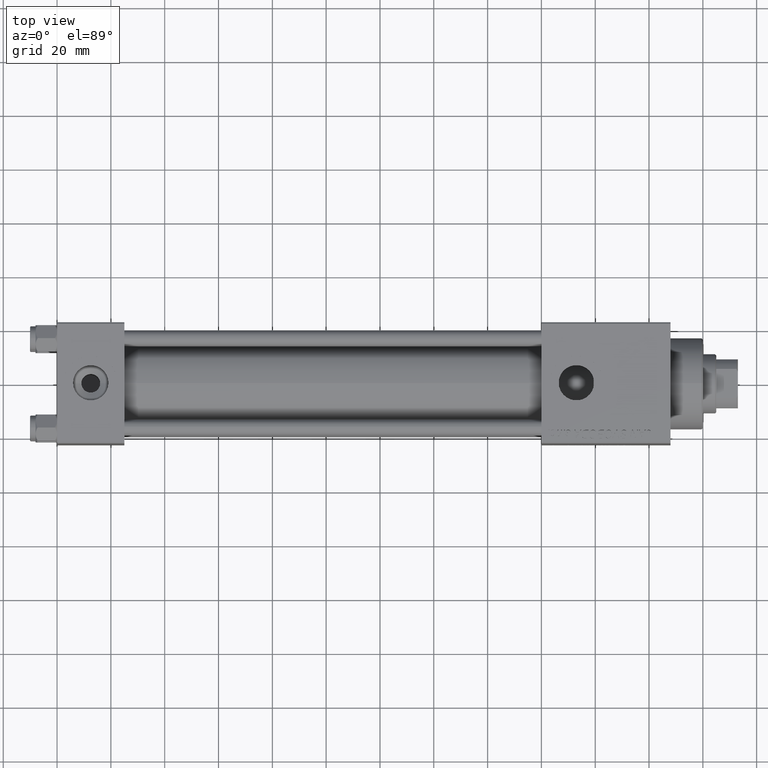
[diagram: clean part render]
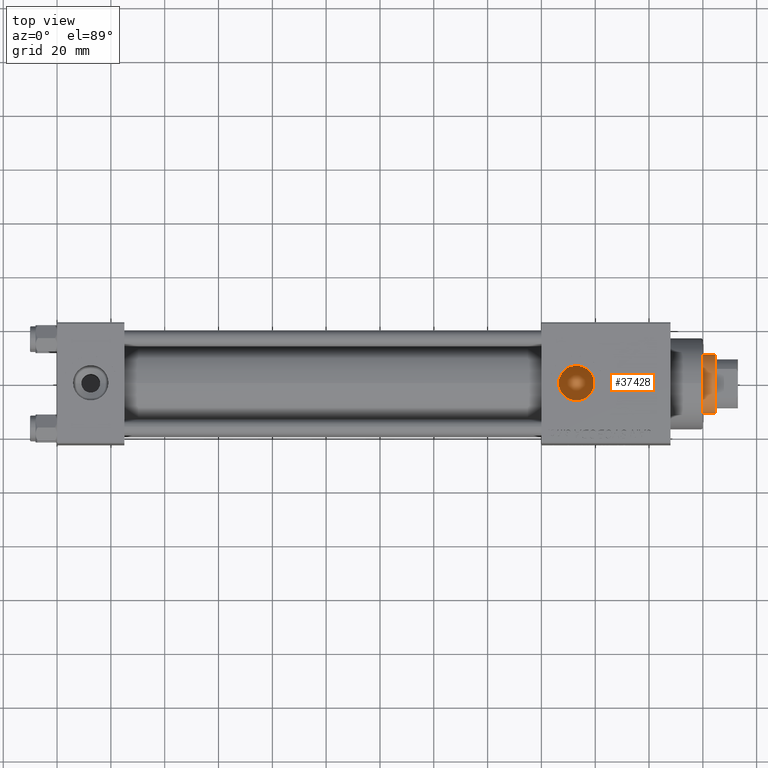
[diagram: same view with one face highlighted and labeled with its STEP entity id]
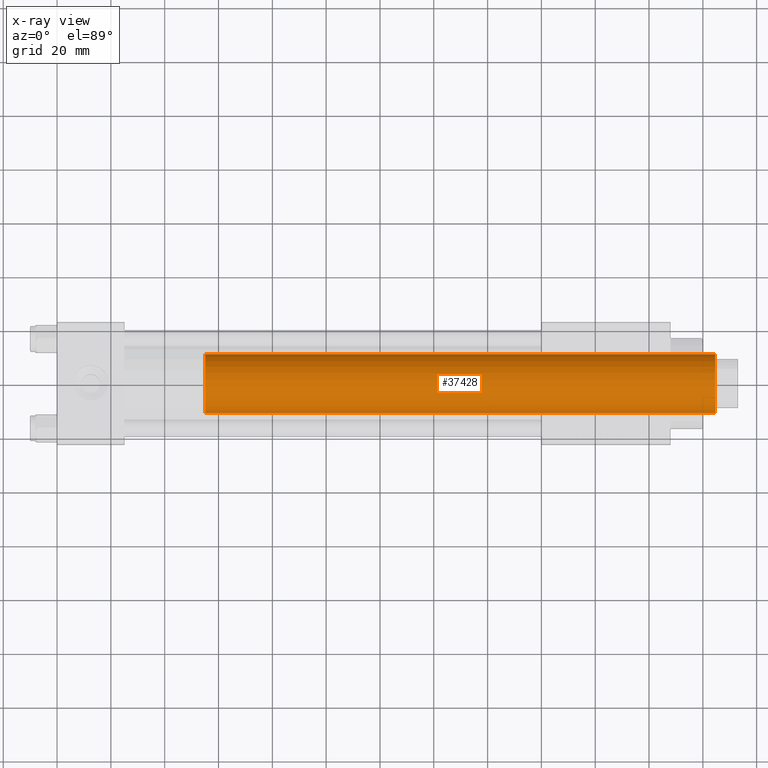
[diagram: x-ray of the same camera — body ghosted, the highlighted face saturated]
A machine part, top view. The second image highlights one B-rep face of the part: STEP entity #37428.
The next image is the same camera in x-ray: the body ghosted, the highlighted face saturated — about 0% of this face is hidden behind the body in this view.
In plain terms, the highlighted cylindrical surface (edge-blend (fillet) strip) has radius 11 mm, axis along (-1, 0, 0).
Its self-contained STEP definition (entity closure, byte-faithful):
#742 = VERTEX_POINT ( 'NONE', #19175 ) ;
#1867 = CARTESIAN_POINT ( 'NONE',  ( 11.00000000000000000, 1.347111479062088405E-15, 219.5000000000000000 ) ) ;
#2849 = CARTESIAN_POINT ( 'NONE',  ( -11.00000000000000000, 0.000000000000000000, 220.0000000000000000 ) ) ;
#5170 = ORIENTED_EDGE ( 'NONE', *, *, #34057, .F. ) ;
#6058 = EDGE_CURVE ( 'NONE', #21589, #742, #32040, .T. ) ;
#8077 = ORIENTED_EDGE ( 'NONE', *, *, #26749, .T. ) ;
#8326 = ORIENTED_EDGE ( 'NONE', *, *, #19894, .T. ) ;
#8696 = CARTESIAN_POINT ( 'NONE',  ( 0.000000000000000000, 0.000000000000000000, 219.5000000000000000 ) ) ;
#11229 = AXIS2_PLACEMENT_3D ( 'NONE', #38883, #26972, #31292 ) ;
#11417 = AXIS2_PLACEMENT_3D ( 'NONE', #8696, #11953, #53109 ) ;
#11953 = DIRECTION ( 'NONE',  ( 0.000000000000000000, 0.000000000000000000, -1.000000000000000000 ) ) ;
#17964 = DIRECTION ( 'NONE',  ( -0.000000000000000000, -0.000000000000000000, -1.000000000000000000 ) ) ;
#18907 = FACE_OUTER_BOUND ( 'NONE', #53271, .T. ) ;
#18980 = CIRCLE ( 'NONE', #11229, 11.00000000000000000 ) ;
#19175 = CARTESIAN_POINT ( 'NONE',  ( -11.00000000000000000, 0.000000000000000000, 30.00000000000000000 ) ) ;
#19177 = DIRECTION ( 'NONE',  ( -0.000000000000000000, -0.000000000000000000, -1.000000000000000000 ) ) ;
#19894 = EDGE_CURVE ( 'NONE', #48971, #21589, #29552, .T. ) ;
#21589 = VERTEX_POINT ( 'NONE', #47806 ) ;
#25419 = AXIS2_PLACEMENT_3D ( 'NONE', #26776, #19177, #48168 ) ;
#25836 = LINE ( 'NONE', #38013, #47819 ) ;
#26749 = EDGE_CURVE ( 'NONE', #742, #46448, #18980, .T. ) ;
#26776 = CARTESIAN_POINT ( 'NONE',  ( 0.000000000000000000, 0.000000000000000000, 220.0000000000000000 ) ) ;
#26972 = DIRECTION ( 'NONE',  ( 0.000000000000000000, 0.000000000000000000, 1.000000000000000000 ) ) ;
#29552 = CIRCLE ( 'NONE', #11417, 11.00000000000000000 ) ;
#31292 = DIRECTION ( 'NONE',  ( 1.000000000000000000, 0.000000000000000000, 0.000000000000000000 ) ) ;
#31627 = CYLINDRICAL_SURFACE ( 'NONE', #25419, 11.00000000000000000 ) ;
#32040 = LINE ( 'NONE', #2849, #51622 ) ;
#34057 = EDGE_CURVE ( 'NONE', #48971, #46448, #25836, .T. ) ;
#37428 = ADVANCED_FACE ( 'NONE', ( #18907 ), #31627, .T. ) ;
#38013 = CARTESIAN_POINT ( 'NONE',  ( 11.00000000000000000, 1.347111479062088405E-15, 220.0000000000000000 ) ) ;
#38883 = CARTESIAN_POINT ( 'NONE',  ( 0.000000000000000000, 0.000000000000000000, 30.00000000000000000 ) ) ;
#38891 = ORIENTED_EDGE ( 'NONE', *, *, #6058, .T. ) ;
#44940 = CARTESIAN_POINT ( 'NONE',  ( 11.00000000000000000, 1.347111479062088405E-15, 30.00000000000000000 ) ) ;
#46448 = VERTEX_POINT ( 'NONE', #44940 ) ;
#47806 = CARTESIAN_POINT ( 'NONE',  ( -11.00000000000000000, 0.000000000000000000, 219.5000000000000000 ) ) ;
#47819 = VECTOR ( 'NONE', #17964, 1000.000000000000000 ) ;
#48168 = DIRECTION ( 'NONE',  ( -1.000000000000000000, 0.000000000000000000, 0.000000000000000000 ) ) ;
#48847 = DIRECTION ( 'NONE',  ( -0.000000000000000000, -0.000000000000000000, -1.000000000000000000 ) ) ;
#48971 = VERTEX_POINT ( 'NONE', #1867 ) ;
#51622 = VECTOR ( 'NONE', #48847, 1000.000000000000000 ) ;
#53109 = DIRECTION ( 'NONE',  ( 1.000000000000000000, 0.000000000000000000, 0.000000000000000000 ) ) ;
#53271 = EDGE_LOOP ( 'NONE', ( #5170, #8326, #38891, #8077 ) ) ;